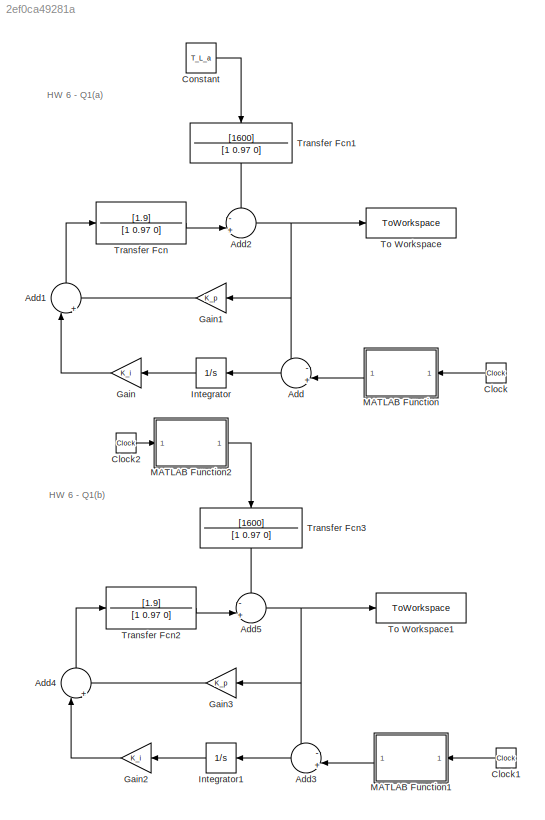
MODEL slx_2ef0ca49281a
KIND model
CONFIG AbsTol = auto
CONFIG EnableMultiTasking = off
CONFIG FixedStep = auto
CONFIG MaxStep = auto
CONFIG MinStep = auto
CONFIG RelTol = 1e-3
CONFIG SampleTimeConstraint = Unconstrained
CONFIG SolverName = VariableStepAuto
CONFIG StartTime = 0.0
CONFIG StopTime = time_end
BLOCK [Sum] Add
  Inputs = -|+||
  NameLocation = top
  Ports = [2, 1]
BLOCK [Sum] Add1
  Inputs = ||+|-
  NameLocation = right
  Ports = [2, 1]
BLOCK [Sum] Add2
  Inputs = -|+||
  Ports = [2, 1]
BLOCK [Sum] Add3
  Inputs = -|+||
  NameLocation = top
  Ports = [2, 1]
BLOCK [Sum] Add4
  Inputs = ||+|-
  NameLocation = right
  Ports = [2, 1]
BLOCK [Sum] Add5
  Inputs = -|+||
  Ports = [2, 1]
BLOCK [Clock] Clock
  NameLocation = top
BLOCK [Clock] Clock1
  NameLocation = top
BLOCK [Clock] Clock2
BLOCK [Constant] Constant
  Value = T_L_a
BLOCK [Gain] Gain
  Gain = K_i
  NameLocation = top
BLOCK [Gain] Gain1
  Gain = K_p
  NameLocation = top
BLOCK [Gain] Gain2
  Gain = K_i
  NameLocation = top
BLOCK [Gain] Gain3
  Gain = K_p
  NameLocation = top
BLOCK [Integrator] Integrator
  NameLocation = top
  Ports = [1, 1]
BLOCK [Integrator] Integrator1
  NameLocation = top
  Ports = [1, 1]
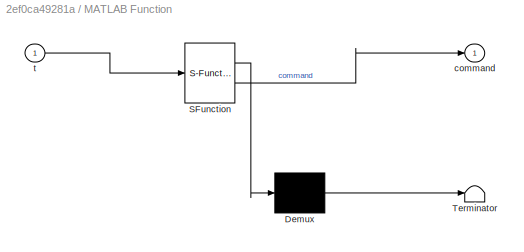
BLOCK [SubSystem] MATLAB Function
  ErrorFcn = Stateflow.Translate.translate
  NameLocation = top
  PermitHierarchicalResolution = ExplicitOnly
  Ports = [1, 1]
  RequestExecContextInheritance = off
  SFBlockType = MATLAB Function
  TreatAsAtomicUnit = on
BLOCK [Demux] MATLAB Function/ Demux 
  Outputs = 1
  Ports = [1, 1]
BLOCK [S-Function] MATLAB Function/ SFunction 
  EnableBusSupport = on
  FunctionName = sf_sfun
  PortCounts = [1 2]
  Ports = [1, 2]
  SFcnIsStateOwnerBlock = off
  SFunctionDeploymentMode = off
  Tag = Stateflow S-Function 2
BLOCK [Terminator] MATLAB Function/ Terminator 
BLOCK [Outport] MATLAB Function/command
BLOCK [Inport] MATLAB Function/t
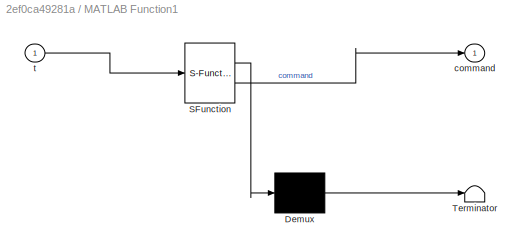
BLOCK [SubSystem] MATLAB Function1
  ErrorFcn = Stateflow.Translate.translate
  NameLocation = top
  PermitHierarchicalResolution = ExplicitOnly
  Ports = [1, 1]
  RequestExecContextInheritance = off
  SFBlockType = MATLAB Function
  TreatAsAtomicUnit = on
BLOCK [Demux] MATLAB Function1/ Demux 
  Outputs = 1
  Ports = [1, 1]
BLOCK [S-Function] MATLAB Function1/ SFunction 
  EnableBusSupport = on
  FunctionName = sf_sfun
  PortCounts = [1 2]
  Ports = [1, 2]
  SFcnIsStateOwnerBlock = off
  SFunctionDeploymentMode = off
  Tag = Stateflow S-Function 1
BLOCK [Terminator] MATLAB Function1/ Terminator 
BLOCK [Outport] MATLAB Function1/command
BLOCK [Inport] MATLAB Function1/t
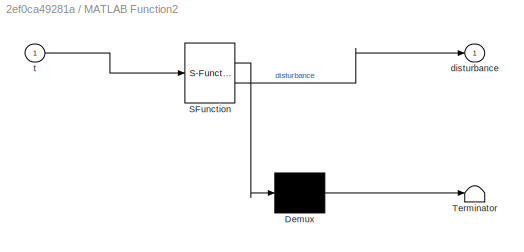
BLOCK [SubSystem] MATLAB Function2
  ErrorFcn = Stateflow.Translate.translate
  PermitHierarchicalResolution = ExplicitOnly
  Ports = [1, 1]
  RequestExecContextInheritance = off
  SFBlockType = MATLAB Function
  TreatAsAtomicUnit = on
BLOCK [Demux] MATLAB Function2/ Demux 
  Outputs = 1
  Ports = [1, 1]
BLOCK [S-Function] MATLAB Function2/ SFunction 
  EnableBusSupport = on
  FunctionName = sf_sfun
  PortCounts = [1 2]
  Ports = [1, 2]
  SFcnIsStateOwnerBlock = off
  SFunctionDeploymentMode = off
  Tag = Stateflow S-Function 3
BLOCK [Terminator] MATLAB Function2/ Terminator 
BLOCK [Outport] MATLAB Function2/disturbance
BLOCK [Inport] MATLAB Function2/t
BLOCK [ToWorkspace] To Workspace
  FixptAsFi = on
  MaxDataPoints = inf
  Ports = [1]
  SampleTime = -1
  SaveFormat = Timeseries
  VariableName = theta_a
BLOCK [ToWorkspace] To Workspace1
  FixptAsFi = on
  MaxDataPoints = inf
  Ports = [1]
  SampleTime = -1
  SaveFormat = Timeseries
  VariableName = theta_b
BLOCK [TransferFcn] Transfer Fcn
  Denominator = [1 0.97 0]
  Numerator = [1.9]
BLOCK [TransferFcn] Transfer Fcn1
  Denominator = [1 0.97 0]
  NameLocation = left
  Numerator = [1600]
BLOCK [TransferFcn] Transfer Fcn2
  Denominator = [1 0.97 0]
  Numerator = [1.9]
BLOCK [TransferFcn] Transfer Fcn3
  Denominator = [1 0.97 0]
  NameLocation = left
  Numerator = [1600]
ANNOTATION (root): HW 6 - Q1(a)
ANNOTATION (root): HW 6 - Q1(b)
LINE Add1:1 -> Transfer Fcn:1
NET Add2:1 -> Add:1, Gain1:1, To Workspace:1
LINE Add3:1 -> Integrator1:1
LINE Add4:1 -> Transfer Fcn2:1
NET Add5:1 -> Add3:1, Gain3:1, To Workspace1:1
LINE Add:1 -> Integrator:1
LINE Clock1:1 -> MATLAB Function1:1
LINE Clock2:1 -> MATLAB Function2:1
LINE Clock:1 -> MATLAB Function:1
LINE Constant:1 -> Transfer Fcn1:1
LINE Gain1:1 -> Add1:2
LINE Gain2:1 -> Add4:1
LINE Gain3:1 -> Add4:2
LINE Gain:1 -> Add1:1
LINE Integrator1:1 -> Gain2:1
LINE Integrator:1 -> Gain:1
LINE MATLAB Function1:1 -> Add3:2
LINE MATLAB Function2:1 -> Transfer Fcn3:1
LINE MATLAB Function:1 -> Add:2
LINE Transfer Fcn1:1 -> Add2:1
LINE Transfer Fcn2:1 -> Add5:2
LINE Transfer Fcn3:1 -> Add5:1
LINE Transfer Fcn:1 -> Add2:2
note: NET lines group one-source signal fan-out (src -> all destinations, sorted); 1:1 wires keep LINE
CHART MATLAB Function states=1 transitions=1
  STATE_LABEL 'eML_blk_kernel()'
  STATE_LABEL 'SCRIPT:\nfunction command = reference(t)\nif (0 <= t) && (t <= 2)\n    r = 0;\nelse\n    r = 0.5;\nend\ncommand = r;\n'
CHART MATLAB Function2 states=1 transitions=1
  STATE_LABEL 'eML_blk_kernel()'
  STATE_LABEL 'SCRIPT:\nfunction disturbance = T_L_b(t)\nif (t < 6)\n    d = 0;\nelse\n    d = 0.0003;\nend    \ndisturbance = d;'
CHART MATLAB Function1 states=1 transitions=1
  STATE_LABEL 'eML_blk_kernel()'
  STATE_LABEL 'SCRIPT:\nfunction command = reference(t)\nif (0 <= t) && (t <= 2)\n    r = 0;\nelse\n    r = 0.5;\nend\ncommand = r;\n'
CHART  states=0 transitions=0
CHART  states=0 transitions=0
CHART  states=0 transitions=0
